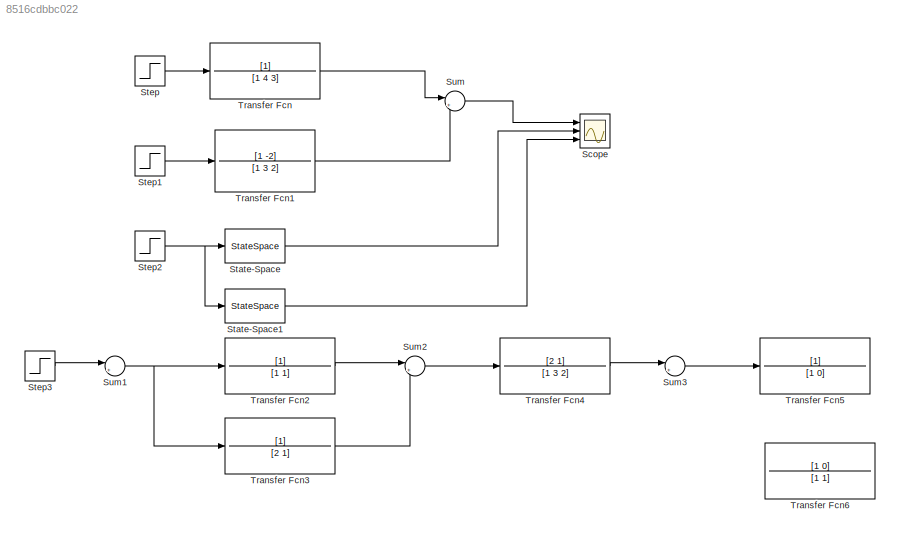
MODEL slx_8516cdbbc022
KIND model
CONFIG AbsTol = auto
CONFIG EnableMultiTasking = off
CONFIG FixedStep = 0.01
CONFIG MaxStep = auto
CONFIG MinStep = auto
CONFIG RelTol = 1e-3
CONFIG SampleTimeConstraint = Unconstrained
CONFIG Solver = ode4
CONFIG SolverName = ode4
CONFIG StartTime = 0.0
CONFIG StopTime = 10.0
BLOCK [Scope] Scope
  Floating = off
  NumInputPorts = 3
  Ports = [3]
  ScopeSpecificationString = Simulink.scopes.TimeScopeBlockCfg('CurrentConfiguration', extmgr.ConfigurationSet(extmgr.Configuration('Core','General UI',true),extmgr.Configuration('Core','Source UI',true),extmgr.Configuration('Sources','WiredSimulink',true),extmgr.Configuration('Visuals','Time Domain',true,'SerializedDisplays',{struct('MinYLimReal','-0.54364','MaxYLimReal','2.65211','YLabelReal','','MinYLimMag','0.00000','MaxY...<+1988ch>
BLOCK [StateSpace] State-Space
  A = Ac
  B = Bc
  C = Cc
  D = [0, 0]
  InitialCondition = 0
  Ports = [1, 1]
BLOCK [StateSpace] State-Space1
  A = A0
  B = B0
  C = C0
  D = [0, 0]
  InitialCondition = 0
  Ports = [1, 1]
BLOCK [Step] Step
  SampleTime = 0
BLOCK [Step] Step1
  After = -2
  SampleTime = 0
BLOCK [Step] Step2
  After = [1;-2]
  SampleTime = 0
BLOCK [Step] Step3
  SampleTime = 0
BLOCK [Sum] Sum
  IconShape = round
  InputSameDT = off
  Inputs = |++
  OutDataTypeStr = Inherit: Inherit via internal rule
  Ports = [2, 1]
  SaturateOnIntegerOverflow = off
BLOCK [Sum] Sum1
  IconShape = round
  InputSameDT = off
  Inputs = |+-
  OutDataTypeStr = Inherit: Inherit via internal rule
  Ports = [2, 1]
  SaturateOnIntegerOverflow = off
BLOCK [Sum] Sum2
  IconShape = round
  InputSameDT = off
  Inputs = |+-
  OutDataTypeStr = Inherit: Inherit via internal rule
  Ports = [2, 1]
  SaturateOnIntegerOverflow = off
BLOCK [Sum] Sum3
  IconShape = round
  InputSameDT = off
  Inputs = |++
  OutDataTypeStr = Inherit: Inherit via internal rule
  Ports = [2, 1]
  SaturateOnIntegerOverflow = off
BLOCK [TransferFcn] Transfer Fcn
  Denominator = [1 4 3]
BLOCK [TransferFcn] Transfer Fcn1
  Denominator = [1 3 2]
  Numerator = [1 -2]
BLOCK [TransferFcn] Transfer Fcn2
  Denominator = [1 1]
BLOCK [TransferFcn] Transfer Fcn3
  Denominator = [2 1]
BLOCK [TransferFcn] Transfer Fcn4
  Denominator = [1 3 2]
  Numerator = [2 1]
BLOCK [TransferFcn] Transfer Fcn5
  Denominator = [1 0]
BLOCK [TransferFcn] Transfer Fcn6
  Denominator = [1 1]
  Numerator = [1 0]
LINE State-Space1:1 -> Scope:3
LINE State-Space:1 -> Scope:2
LINE Step1:1 -> Transfer Fcn1:1
NET Step2:1 -> State-Space1:1, State-Space:1
LINE Step3:1 -> Sum1:1
LINE Step:1 -> Transfer Fcn:1
NET Sum1:1 -> Transfer Fcn2:1, Transfer Fcn3:1
LINE Sum2:1 -> Transfer Fcn4:1
LINE Sum3:1 -> Transfer Fcn5:1
LINE Sum:1 -> Scope:1
LINE Transfer Fcn1:1 -> Sum:2
LINE Transfer Fcn2:1 -> Sum2:1
LINE Transfer Fcn3:1 -> Sum2:2
LINE Transfer Fcn4:1 -> Sum3:1
LINE Transfer Fcn:1 -> Sum:1
note: NET lines group one-source signal fan-out (src -> all destinations, sorted); 1:1 wires keep LINE
